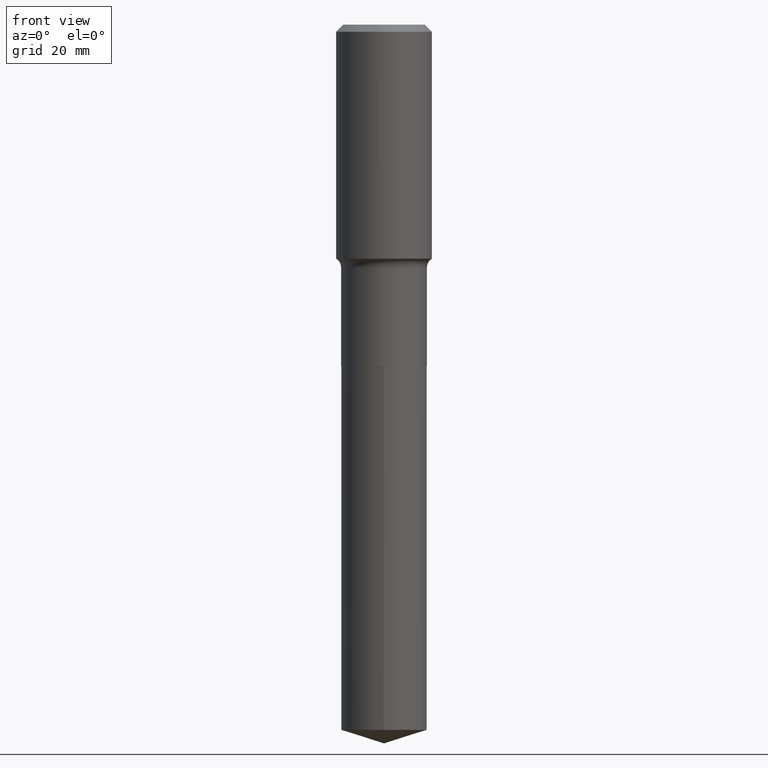
[diagram: clean part render]
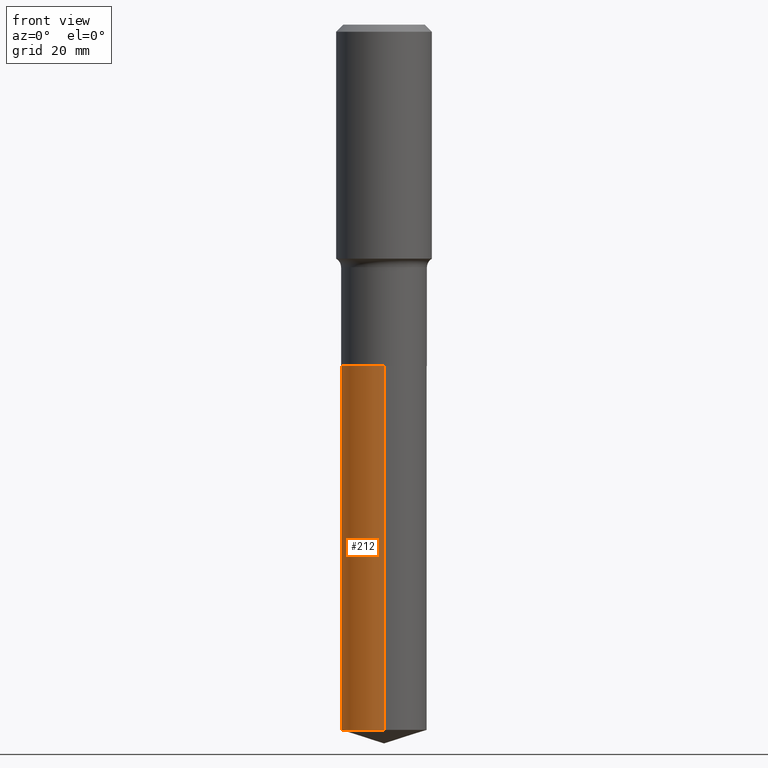
[diagram: same view with one face highlighted and labeled with its STEP entity id]
A machine part, front view. The second image highlights one B-rep face of the part: STEP entity #212.
In plain terms, the highlighted cylindrical surface (partial cylindrical patch) has radius 8.5331 mm, axis along (-0, 0, 1).
Its self-contained STEP definition (entity closure, byte-faithful):
#4 = ORIENTED_EDGE ( 'NONE', *, *, #365, .T. ) ;
#12 = ORIENTED_EDGE ( 'NONE', *, *, #195, .T. ) ;
#14 = VERTEX_POINT ( 'NONE', #41 ) ;
#19 = EDGE_CURVE ( 'NONE', #14, #397, #114, .T. ) ;
#22 = CARTESIAN_POINT ( 'NONE',  ( 2.387068320786190079E-15, 0.3359499999999805975, -5.519075371876107639 ) ) ;
#37 = EDGE_CURVE ( 'NONE', #153, #14, #43, .T. ) ;
#41 = CARTESIAN_POINT ( 'NONE',  ( 2.387068320786192052E-15, 0.3359499999999906450, -2.671900000000001274 ) ) ;
#43 = LINE ( 'NONE', #103, #311 ) ;
#54 = DIRECTION ( 'NONE',  ( -2.445293720551097683E-29, 3.491732071436344983E-15, 1.000000000000000000 ) ) ;
#75 = FACE_OUTER_BOUND ( 'NONE', #390, .T. ) ;
#82 = DIRECTION ( 'NONE',  ( -6.982962677686265133E-15, -1.000000000000000000, 3.252684022817994463E-15 ) ) ;
#103 = CARTESIAN_POINT ( 'NONE',  ( 2.387068320786121448E-15, 0.3359499999999906450, -2.671900000000001274 ) ) ;
#107 = DIRECTION ( 'NONE',  ( -6.982962677686265133E-15, -1.000000000000000000, 3.252684022817994463E-15 ) ) ;
#114 = CIRCLE ( 'NONE', #148, 0.3359500000000000264 ) ;
#140 = CIRCLE ( 'NONE', #373, 0.3359500000000000264 ) ;
#148 = AXIS2_PLACEMENT_3D ( 'NONE', #452, #263, #82 ) ;
#153 = VERTEX_POINT ( 'NONE', #22 ) ;
#179 = CARTESIAN_POINT ( 'NONE',  ( 6.534048103246065700E-29, -9.328888989255000747E-15, -2.671899999999999942 ) ) ;
#195 = EDGE_CURVE ( 'NONE', #153, #457, #140, .T. ) ;
#212 = ADVANCED_FACE ( 'NONE', ( #75 ), #225, .T. ) ;
#225 = CYLINDRICAL_SURFACE ( 'NONE', #360, 0.3359500000000000264 ) ;
#232 = ORIENTED_EDGE ( 'NONE', *, *, #19, .F. ) ;
#250 = CARTESIAN_POINT ( 'NONE',  ( 1.349622816140244701E-28, -1.927046254823850820E-14, -5.519075371876106750 ) ) ;
#258 = CARTESIAN_POINT ( 'NONE',  ( -2.345926311568635428E-15, -0.3359500000000093523, -2.671899999999999054 ) ) ;
#263 = DIRECTION ( 'NONE',  ( -2.445293720551097683E-29, 3.491732071436344983E-15, 1.000000000000000000 ) ) ;
#293 = CARTESIAN_POINT ( 'NONE',  ( -2.345926311568635428E-15, -0.3359500000000093523, -2.671899999999999054 ) ) ;
#308 = CARTESIAN_POINT ( 'NONE',  ( -2.345926311568565614E-15, -0.3359500000000191222, -5.519075371876105862 ) ) ;
#311 = VECTOR ( 'NONE', #492, 39.37007874015748143 ) ;
#321 = LINE ( 'NONE', #258, #437 ) ;
#325 = DIRECTION ( 'NONE',  ( -2.445293720551097683E-29, 3.491732071436345377E-15, 1.000000000000000000 ) ) ;
#360 = AXIS2_PLACEMENT_3D ( 'NONE', #179, #382, #107 ) ;
#365 = EDGE_CURVE ( 'NONE', #457, #397, #321, .T. ) ;
#373 = AXIS2_PLACEMENT_3D ( 'NONE', #250, #54, #391 ) ;
#382 = DIRECTION ( 'NONE',  ( -2.445293720551097683E-29, 3.491732071436344983E-15, 1.000000000000000000 ) ) ;
#390 = EDGE_LOOP ( 'NONE', ( #398, #12, #4, #232 ) ) ;
#391 = DIRECTION ( 'NONE',  ( -6.982962677686265133E-15, -1.000000000000000000, 3.252684022817994463E-15 ) ) ;
#397 = VERTEX_POINT ( 'NONE', #293 ) ;
#398 = ORIENTED_EDGE ( 'NONE', *, *, #37, .F. ) ;
#437 = VECTOR ( 'NONE', #325, 39.37007874015748143 ) ;
#452 = CARTESIAN_POINT ( 'NONE',  ( 6.534048103246065700E-29, -9.328888989255000747E-15, -2.671899999999999942 ) ) ;
#457 = VERTEX_POINT ( 'NONE', #308 ) ;
#492 = DIRECTION ( 'NONE',  ( -2.445293720551097683E-29, 3.491732071436345377E-15, 1.000000000000000000 ) ) ;